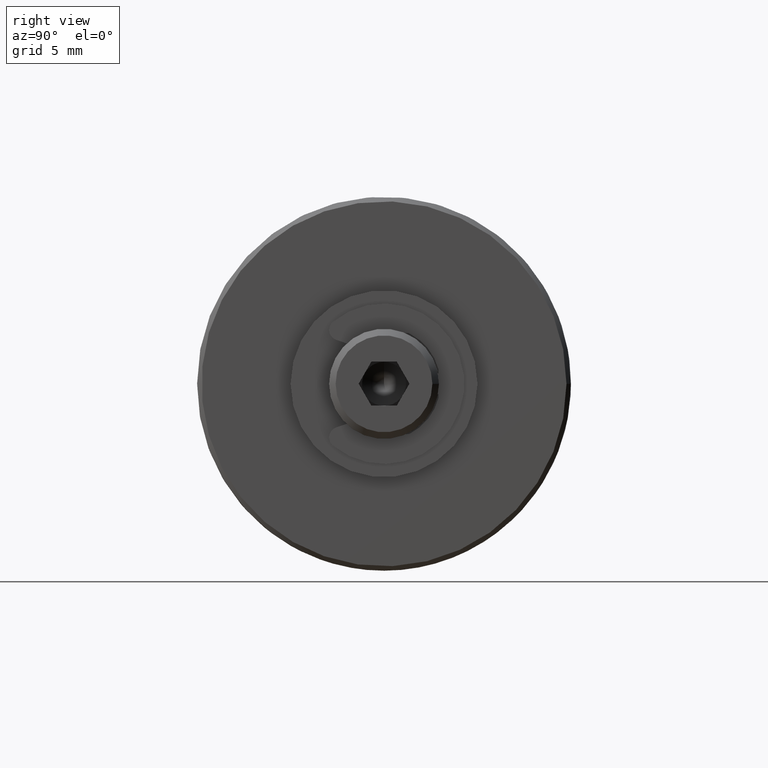
[diagram: clean part render]
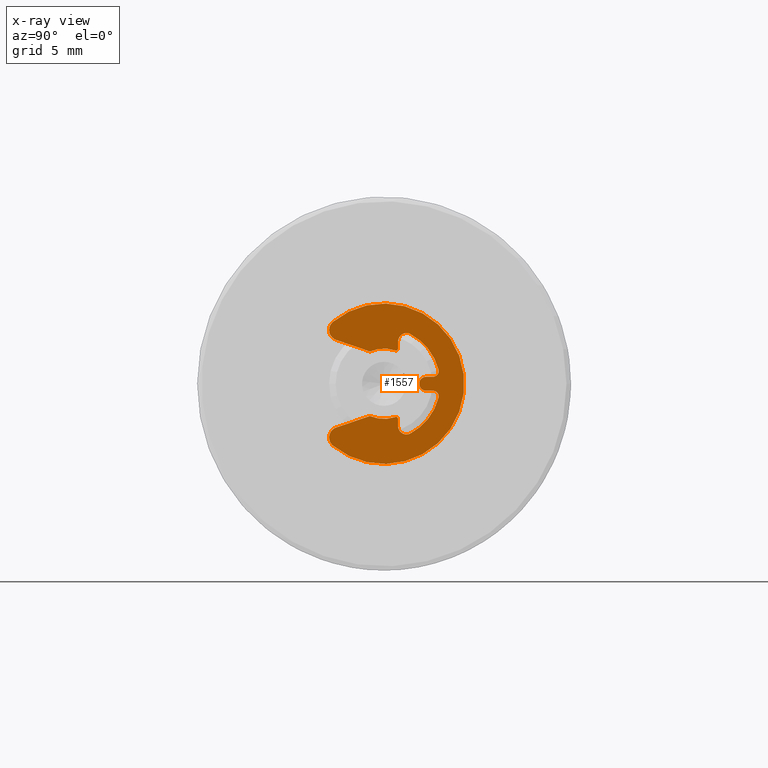
[diagram: x-ray — body ghosted, one internal face saturated and labeled with its STEP entity id]
A machine part, right view, then the same camera in x-ray: the body is ghosted and one INTERNAL B-rep face — a face not visible from any outside direction — is saturated and labeled: STEP entity #1557.
In plain terms, the highlighted planar face has unit normal (-1, 0, 0).
Its self-contained STEP definition (entity closure, byte-faithful):
#125=PLANE('',#1880);
#248=FACE_OUTER_BOUND('',#354,.T.);
#354=EDGE_LOOP('',(#1430,#1431,#1432,#1433,#1434,#1435,#1436,#1437,#1438,
#1439,#1440,#1441,#1442,#1443,#1444,#1445,#1446,#1447,#1448,#1449));
#441=LINE('',#2754,#556);
#446=LINE('',#2772,#561);
#452=LINE('',#2796,#567);
#456=LINE('',#2808,#571);
#462=LINE('',#2832,#577);
#467=LINE('',#2850,#582);
#556=VECTOR('',#2260,10.);
#561=VECTOR('',#2279,10.);
#567=VECTOR('',#2305,10.);
#571=VECTOR('',#2317,10.);
#577=VECTOR('',#2343,10.);
#582=VECTOR('',#2362,10.);
#644=CIRCLE('',#1832,3.65);
#646=CIRCLE('',#1835,0.48);
#648=CIRCLE('',#1839,1.6);
#650=CIRCLE('',#1842,0.096);
#652=CIRCLE('',#1846,0.384);
#654=CIRCLE('',#1849,2.56);
#656=CIRCLE('',#1852,0.256);
#658=CIRCLE('',#1856,0.32);
#660=CIRCLE('',#1860,0.256);
#662=CIRCLE('',#1863,2.56);
#664=CIRCLE('',#1866,0.384);
#666=CIRCLE('',#1870,0.096);
#668=CIRCLE('',#1873,1.6);
#670=CIRCLE('',#1877,0.48);
#768=VERTEX_POINT('',#2738);
#769=VERTEX_POINT('',#2739);
#772=VERTEX_POINT('',#2747);
#774=VERTEX_POINT('',#2753);
#776=VERTEX_POINT('',#2759);
#778=VERTEX_POINT('',#2765);
#780=VERTEX_POINT('',#2771);
#782=VERTEX_POINT('',#2777);
#784=VERTEX_POINT('',#2783);
#786=VERTEX_POINT('',#2789);
#788=VERTEX_POINT('',#2795);
#790=VERTEX_POINT('',#2801);
#792=VERTEX_POINT('',#2807);
#794=VERTEX_POINT('',#2813);
#796=VERTEX_POINT('',#2819);
#798=VERTEX_POINT('',#2825);
#800=VERTEX_POINT('',#2831);
#802=VERTEX_POINT('',#2837);
#804=VERTEX_POINT('',#2843);
#806=VERTEX_POINT('',#2849);
#962=EDGE_CURVE('',#768,#769,#644,.T.);
#966=EDGE_CURVE('',#769,#772,#646,.T.);
#969=EDGE_CURVE('',#772,#774,#441,.T.);
#972=EDGE_CURVE('',#774,#776,#648,.T.);
#975=EDGE_CURVE('',#776,#778,#650,.T.);
#978=EDGE_CURVE('',#778,#780,#446,.T.);
#981=EDGE_CURVE('',#780,#782,#652,.T.);
#984=EDGE_CURVE('',#782,#784,#654,.T.);
#987=EDGE_CURVE('',#784,#786,#656,.T.);
#990=EDGE_CURVE('',#786,#788,#452,.T.);
#993=EDGE_CURVE('',#788,#790,#658,.T.);
#996=EDGE_CURVE('',#790,#792,#456,.T.);
#999=EDGE_CURVE('',#792,#794,#660,.T.);
#1002=EDGE_CURVE('',#794,#796,#662,.T.);
#1005=EDGE_CURVE('',#796,#798,#664,.T.);
#1008=EDGE_CURVE('',#798,#800,#462,.T.);
#1011=EDGE_CURVE('',#800,#802,#666,.T.);
#1014=EDGE_CURVE('',#802,#804,#668,.T.);
#1017=EDGE_CURVE('',#804,#806,#467,.T.);
#1020=EDGE_CURVE('',#806,#768,#670,.T.);
#1430=ORIENTED_EDGE('',*,*,#962,.F.);
#1431=ORIENTED_EDGE('',*,*,#1020,.F.);
#1432=ORIENTED_EDGE('',*,*,#1017,.F.);
#1433=ORIENTED_EDGE('',*,*,#1014,.F.);
#1434=ORIENTED_EDGE('',*,*,#1011,.F.);
#1435=ORIENTED_EDGE('',*,*,#1008,.F.);
#1436=ORIENTED_EDGE('',*,*,#1005,.F.);
#1437=ORIENTED_EDGE('',*,*,#1002,.F.);
#1438=ORIENTED_EDGE('',*,*,#999,.F.);
#1439=ORIENTED_EDGE('',*,*,#996,.F.);
#1440=ORIENTED_EDGE('',*,*,#993,.F.);
#1441=ORIENTED_EDGE('',*,*,#990,.F.);
#1442=ORIENTED_EDGE('',*,*,#987,.F.);
#1443=ORIENTED_EDGE('',*,*,#984,.F.);
#1444=ORIENTED_EDGE('',*,*,#981,.F.);
#1445=ORIENTED_EDGE('',*,*,#978,.F.);
#1446=ORIENTED_EDGE('',*,*,#975,.F.);
#1447=ORIENTED_EDGE('',*,*,#972,.F.);
#1448=ORIENTED_EDGE('',*,*,#969,.F.);
#1449=ORIENTED_EDGE('',*,*,#966,.F.);
#1557=ADVANCED_FACE('',(#248),#125,.T.);
#1832=AXIS2_PLACEMENT_3D('',#2740,#2245,#2246);
#1835=AXIS2_PLACEMENT_3D('',#2748,#2253,#2254);
#1839=AXIS2_PLACEMENT_3D('',#2760,#2265,#2266);
#1842=AXIS2_PLACEMENT_3D('',#2766,#2272,#2273);
#1846=AXIS2_PLACEMENT_3D('',#2778,#2284,#2285);
#1849=AXIS2_PLACEMENT_3D('',#2784,#2291,#2292);
#1852=AXIS2_PLACEMENT_3D('',#2790,#2298,#2299);
#1856=AXIS2_PLACEMENT_3D('',#2802,#2310,#2311);
#1860=AXIS2_PLACEMENT_3D('',#2814,#2322,#2323);
#1863=AXIS2_PLACEMENT_3D('',#2820,#2329,#2330);
#1866=AXIS2_PLACEMENT_3D('',#2826,#2336,#2337);
#1870=AXIS2_PLACEMENT_3D('',#2838,#2348,#2349);
#1873=AXIS2_PLACEMENT_3D('',#2844,#2355,#2356);
#1877=AXIS2_PLACEMENT_3D('',#2855,#2367,#2368);
#1880=AXIS2_PLACEMENT_3D('',#2858,#2373,#2374);
#2245=DIRECTION('center_axis',(0.,0.,-1.));
#2246=DIRECTION('ref_axis',(0.771204739168986,-0.636587189851709,0.));
#2253=DIRECTION('center_axis',(0.,0.,-1.));
#2254=DIRECTION('ref_axis',(-0.946245514439579,-0.323449264032208,0.));
#2260=DIRECTION('',(-0.323449264032209,0.946245514439579,0.));
#2265=DIRECTION('center_axis',(0.,0.,1.));
#2266=DIRECTION('ref_axis',(-0.916515138991168,0.400000000000001,0.));
#2272=DIRECTION('center_axis',(0.,0.,-1.));
#2273=DIRECTION('ref_axis',(0.,1.,0.));
#2279=DIRECTION('',(1.,8.85027018171343E-16,0.));
#2284=DIRECTION('center_axis',(0.,0.,1.));
#2285=DIRECTION('ref_axis',(0.,1.,0.));
#2291=DIRECTION('center_axis',(0.,0.,1.));
#2292=DIRECTION('ref_axis',(-0.882352941176471,-0.470588235294117,0.));
#2298=DIRECTION('center_axis',(0.,0.,1.));
#2299=DIRECTION('ref_axis',(-0.25,-0.968245836551854,0.));
#2305=DIRECTION('',(-4.46463097118662E-16,-1.,0.));
#2310=DIRECTION('center_axis',(0.,0.,-1.));
#2311=DIRECTION('ref_axis',(-1.,-3.79470760369926E-16,0.));
#2317=DIRECTION('',(-4.46463097118662E-16,1.,0.));
#2322=DIRECTION('center_axis',(0.,0.,1.));
#2323=DIRECTION('ref_axis',(-1.,-4.06575814682064E-16,0.));
#2329=DIRECTION('center_axis',(0.,0.,1.));
#2330=DIRECTION('ref_axis',(0.25,-0.968245836551854,0.));
#2336=DIRECTION('center_axis',(0.,0.,1.));
#2337=DIRECTION('ref_axis',(0.882352941176471,-0.470588235294117,0.));
#2343=DIRECTION('',(1.,-8.85027018171343E-16,0.));
#2348=DIRECTION('center_axis',(0.,0.,-1.));
#2349=DIRECTION('ref_axis',(0.947162294189519,-0.320754716981132,0.));
#2355=DIRECTION('center_axis',(0.,0.,1.));
#2356=DIRECTION('ref_axis',(0.947162294189519,-0.320754716981132,0.));
#2362=DIRECTION('',(-0.323449264032209,-0.946245514439579,0.));
#2367=DIRECTION('center_axis',(0.,0.,-1.));
#2368=DIRECTION('ref_axis',(-0.771204739168986,-0.636587189851709,0.));
#2373=DIRECTION('center_axis',(0.,0.,1.));
#2374=DIRECTION('ref_axis',(1.,0.,0.));
#2738=CARTESIAN_POINT('',(-2.8148972979668,-4.29989523289174,0.6));
#2739=CARTESIAN_POINT('',(2.8148972979668,-4.29989523289174,0.6));
#2740=CARTESIAN_POINT('Origin',(1.65327317884893E-16,-1.976351989933,0.6));
#2747=CARTESIAN_POINT('',(1.99052117623469,-4.14958902849838,0.6));
#2748=CARTESIAN_POINT('Origin',(2.44471902316569,-3.99433338176292,0.6));
#2753=CARTESIAN_POINT('',(1.46642422238587,-2.616351989933,0.6));
#2754=CARTESIAN_POINT('',(1.46642422238587,-2.616351989933,0.6));
#2759=CARTESIAN_POINT('',(1.51545967070323,-1.46314444276319,0.6));
#2760=CARTESIAN_POINT('Origin',(1.65327317884893E-16,-1.976351989933,0.6));
#2765=CARTESIAN_POINT('',(1.60638725094542,-1.336351989933,0.6));
#2766=CARTESIAN_POINT('Origin',(1.60638725094542,-1.432351989933,0.6));
#2771=CARTESIAN_POINT('',(1.92,-1.336351989933,0.6));
#2772=CARTESIAN_POINT('',(1.92,-1.336351989933,0.6));
#2777=CARTESIAN_POINT('',(2.25882352941177,-0.77164610758006,0.6));
#2778=CARTESIAN_POINT('Origin',(1.92,-0.952351989933001,0.6));
#2783=CARTESIAN_POINT('',(0.64,0.502357351639747,0.6));
#2784=CARTESIAN_POINT('Origin',(1.65327317884893E-16,-1.976351989933,0.6));
#2789=CARTESIAN_POINT('',(0.32,0.254486417482472,0.6));
#2790=CARTESIAN_POINT('Origin',(0.576,0.254486417482472,0.6));
#2795=CARTESIAN_POINT('',(0.32,-0.0563519899330012,0.6));
#2796=CARTESIAN_POINT('',(0.32,-0.0563519899330012,0.6));
#2801=CARTESIAN_POINT('',(-0.32,-0.0563519899330012,0.6));
#2802=CARTESIAN_POINT('Origin',(-1.67037747251847E-33,-0.056351989933001,
0.6));
#2807=CARTESIAN_POINT('',(-0.32,0.254486417482472,0.6));
#2808=CARTESIAN_POINT('',(-0.32,0.254486417482472,0.6));
#2813=CARTESIAN_POINT('',(-0.64,0.502357351639747,0.6));
#2814=CARTESIAN_POINT('Origin',(-0.576,0.254486417482472,0.6));
#2819=CARTESIAN_POINT('',(-2.25882352941177,-0.77164610758006,0.6));
#2820=CARTESIAN_POINT('Origin',(1.65327317884893E-16,-1.976351989933,0.6));
#2825=CARTESIAN_POINT('',(-1.92,-1.336351989933,0.6));
#2826=CARTESIAN_POINT('Origin',(-1.92,-0.952351989933001,0.6));
#2831=CARTESIAN_POINT('',(-1.60638725094542,-1.336351989933,0.6));
#2832=CARTESIAN_POINT('',(-1.60638725094542,-1.336351989933,0.6));
#2837=CARTESIAN_POINT('',(-1.51545967070323,-1.46314444276319,0.6));
#2838=CARTESIAN_POINT('Origin',(-1.60638725094542,-1.432351989933,0.6));
#2843=CARTESIAN_POINT('',(-1.46642422238587,-2.616351989933,0.6));
#2844=CARTESIAN_POINT('Origin',(1.65327317884893E-16,-1.976351989933,0.6));
#2849=CARTESIAN_POINT('',(-1.99052117623469,-4.14958902849838,0.6));
#2850=CARTESIAN_POINT('',(-1.99052117623469,-4.14958902849838,0.6));
#2855=CARTESIAN_POINT('Origin',(-2.44471902316569,-3.99433338176292,0.6));
#2858=CARTESIAN_POINT('Origin',(6.93889390390723E-17,-1.21558532624017,
0.6));